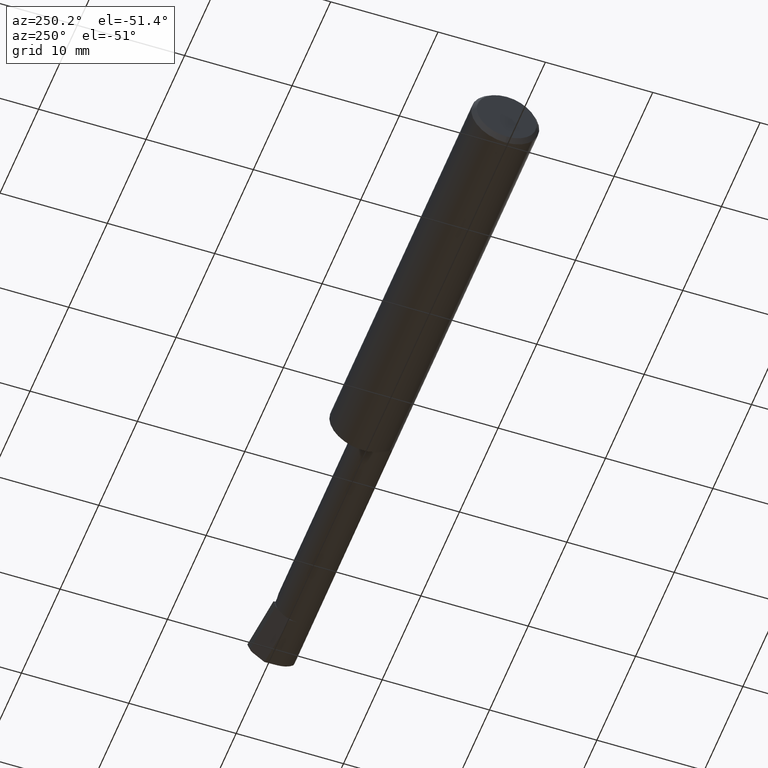
[diagram: clean part render]
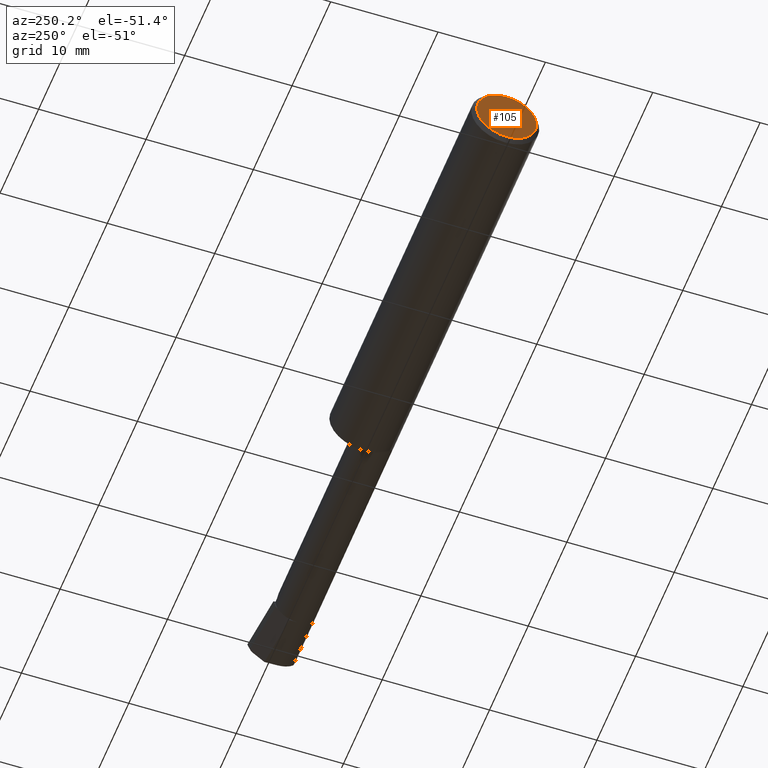
[diagram: same view with one face highlighted and labeled with its STEP entity id]
A machine part, auxiliary view. The second image highlights one B-rep face of the part: STEP entity #105.
In plain terms, the highlighted planar face has unit normal (1, 0, 0).
Its self-contained STEP definition (entity closure, byte-faithful):
#33 = DIRECTION ( 'NONE',  ( 0.0000000000000000000, 0.0000000000000000000, -1.000000000000000000 ) ) ;
#67 = ORIENTED_EDGE ( 'NONE', *, *, #378, .T. ) ;
#97 = CARTESIAN_POINT ( 'NONE',  ( 0.0000000000000000000, 1.437123018799416669E-17, 0.1098499999999996424 ) ) ;
#100 = ORIENTED_EDGE ( 'NONE', *, *, #236, .T. ) ;
#105 = ADVANCED_FACE ( 'NONE', ( #139 ), #333, .F. ) ;
#107 = EDGE_LOOP ( 'NONE', ( #100, #67 ) ) ;
#134 = AXIS2_PLACEMENT_3D ( 'NONE', #620, #504, #453 ) ;
#139 = FACE_OUTER_BOUND ( 'NONE', #107, .T. ) ;
#227 = CIRCLE ( 'NONE', #134, 0.1098499999999996424 ) ;
#236 = EDGE_CURVE ( 'NONE', #426, #467, #516, .T. ) ;
#251 = CARTESIAN_POINT ( 'NONE',  ( 0.0000000000000000000, 0.0000000000000000000, -0.1098499999999996424 ) ) ;
#333 = PLANE ( 'NONE',  #495 ) ;
#368 = DIRECTION ( 'NONE',  ( -1.000000000000000000, -0.0000000000000000000, -0.0000000000000000000 ) ) ;
#378 = EDGE_CURVE ( 'NONE', #467, #426, #227, .T. ) ;
#425 = CARTESIAN_POINT ( 'NONE',  ( 0.0000000000000000000, 0.0000000000000000000, 0.0000000000000000000 ) ) ;
#426 = VERTEX_POINT ( 'NONE', #251 ) ;
#430 = DIRECTION ( 'NONE',  ( 1.000000000000000000, 0.0000000000000000000, 0.0000000000000000000 ) ) ;
#448 = CARTESIAN_POINT ( 'NONE',  ( 0.0000000000000000000, 0.0000000000000000000, 0.0000000000000000000 ) ) ;
#453 = DIRECTION ( 'NONE',  ( 0.0000000000000000000, 0.0000000000000000000, 1.000000000000000000 ) ) ;
#467 = VERTEX_POINT ( 'NONE', #97 ) ;
#479 = AXIS2_PLACEMENT_3D ( 'NONE', #425, #368, #625 ) ;
#495 = AXIS2_PLACEMENT_3D ( 'NONE', #448, #430, #33 ) ;
#504 = DIRECTION ( 'NONE',  ( -1.000000000000000000, -0.0000000000000000000, -0.0000000000000000000 ) ) ;
#516 = CIRCLE ( 'NONE', #479, 0.1098499999999996424 ) ;
#620 = CARTESIAN_POINT ( 'NONE',  ( 0.0000000000000000000, 0.0000000000000000000, 0.0000000000000000000 ) ) ;
#625 = DIRECTION ( 'NONE',  ( 0.0000000000000000000, 0.0000000000000000000, 1.000000000000000000 ) ) ;